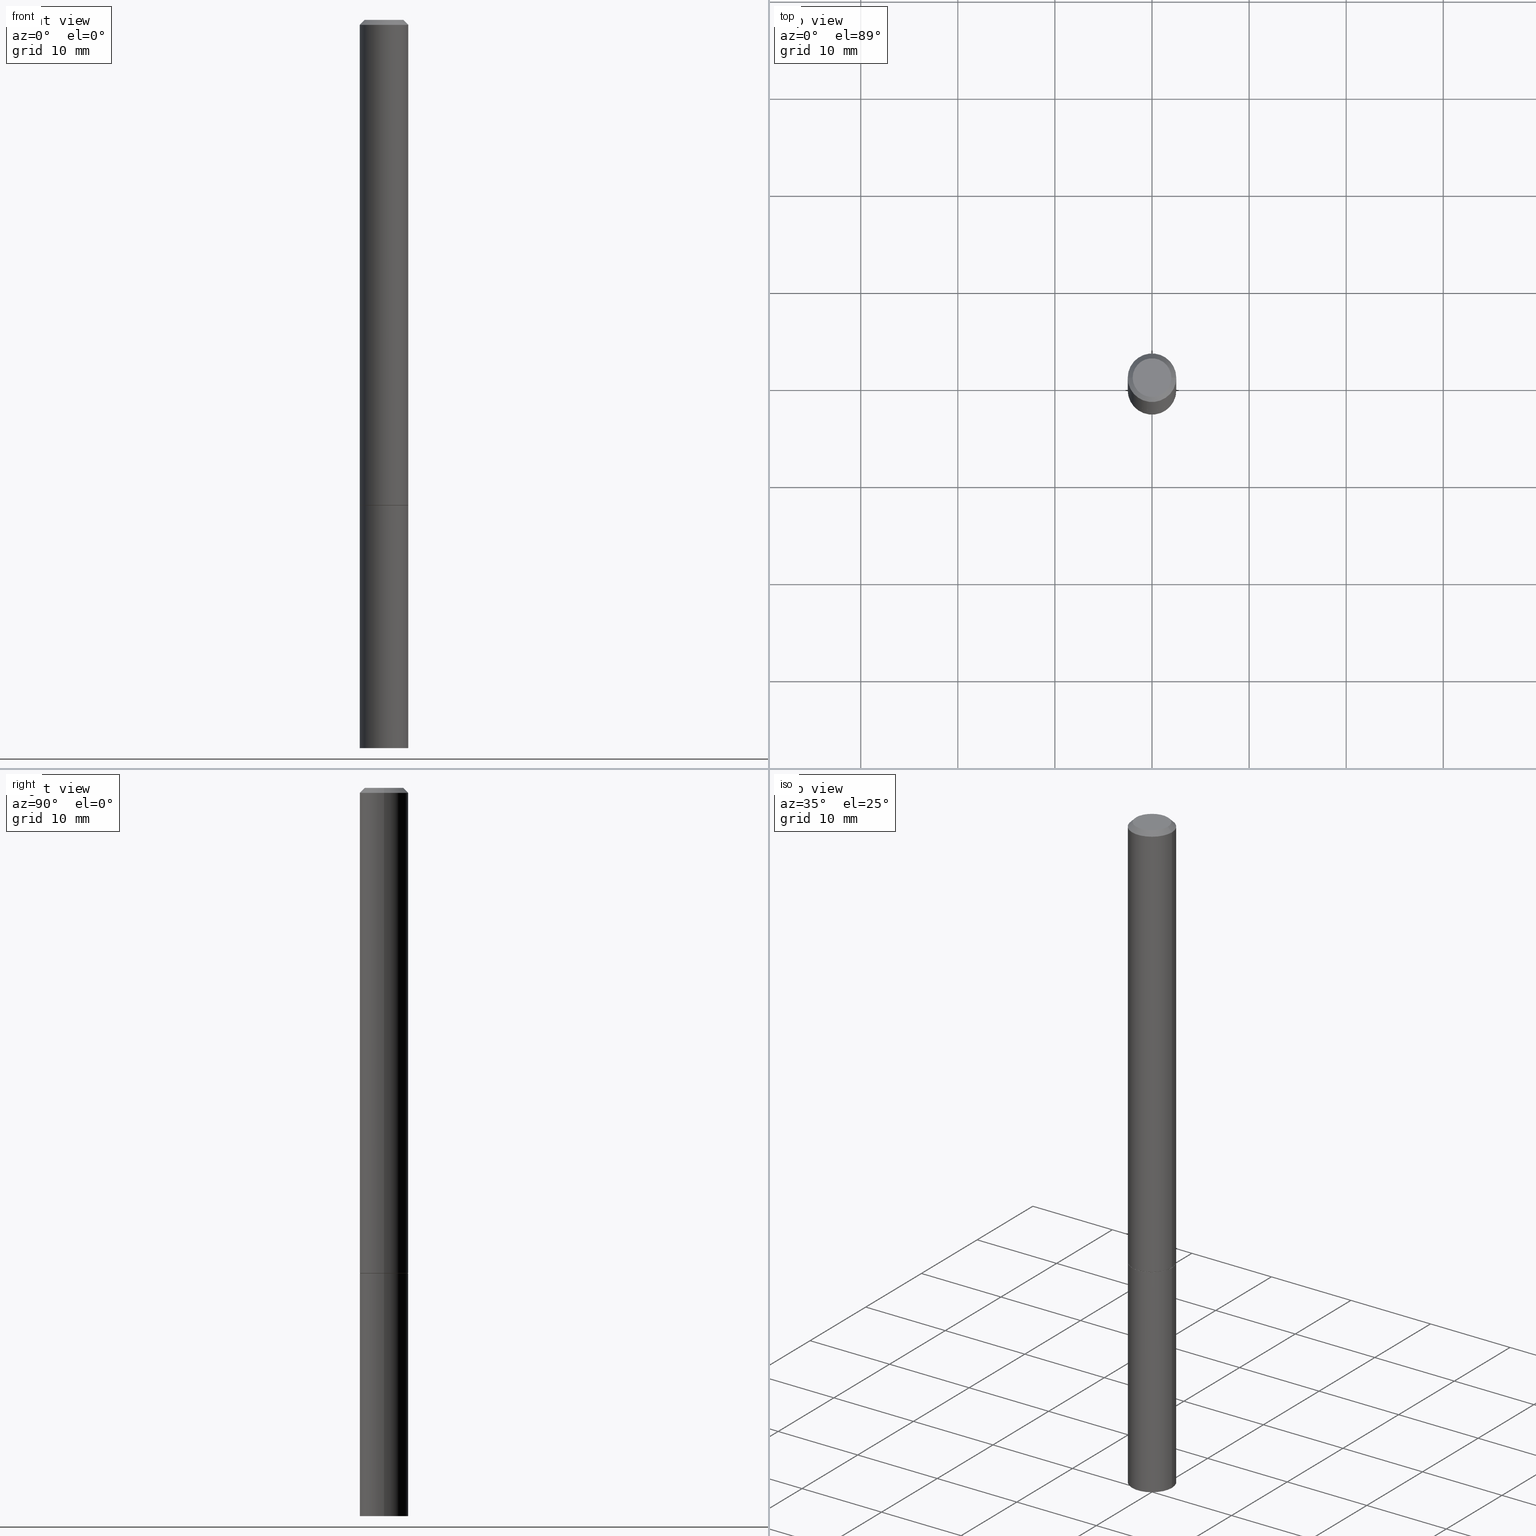
[diagram: canonical four-view strip — front | top / right | iso, engineering-drawing reading convention]
A machine part, canonical four-view strip (front | top / right | iso — engineering-drawing reading convention). The complete STEP part file that produces these views, byte-faithful:
ISO-10303-21;
HEADER;
FILE_DESCRIPTION (( 'STEP AP203' ),
    '1' );
FILE_NAME ('49495.STEP',
    '2024-02-29T00:12:34',
    ( '' ),
    ( '' ),
    'SwSTEP 2.0',
    'SolidWorks 2023',
    '' );
FILE_SCHEMA (( 'CONFIG_CONTROL_DESIGN' ));
ENDSEC;

DATA;
#1 = ORIENTED_EDGE ( 'NONE', *, *, #266, .T. ) ;
#2 = ADVANCED_FACE ( 'NONE', ( #64 ), #167, .F. ) ;
#3 = FACE_OUTER_BOUND ( 'NONE', #12, .T. ) ;
#4 = AXIS2_PLACEMENT_3D ( 'NONE', #52, #55, #337 ) ;
#5 = VERTEX_POINT ( 'NONE', #270 ) ;
#6 = ORIENTED_EDGE ( 'NONE', *, *, #7, .T. ) ;
#7 = EDGE_CURVE ( 'NONE', #36, #288, #94, .T. ) ;
#8 = ORIENTED_EDGE ( 'NONE', *, *, #282, .F. ) ;
#9 = DATE_AND_TIME ( #137, #311 ) ;
#10 = VECTOR ( 'NONE', #217, 39.37007874015748143 ) ;
#11 = DATE_TIME_ROLE ( 'creation_date' ) ;
#12 = EDGE_LOOP ( 'NONE', ( #157, #45, #240, #177 ) ) ;
#13 = EDGE_CURVE ( 'NONE', #258, #58, #190, .T. ) ;
#14 = DIRECTION ( 'NONE',  ( 1.000000000000000000, -6.982962677686274599E-15, 0.000000000000000000 ) ) ;
#15 = LINE ( 'NONE', #75, #28 ) ;
#16 = VERTEX_POINT ( 'NONE', #244 ) ;
#17 = PERSON_AND_ORGANIZATION ( #60, #224 ) ;
#18 = AXIS2_PLACEMENT_3D ( 'NONE', #61, #153, #204 ) ;
#19 = FACE_OUTER_BOUND ( 'NONE', #313, .T. ) ;
#20 = PERSON_AND_ORGANIZATION ( #60, #224 ) ;
#21 = DIRECTION ( 'NONE',  ( 1.000000000000000000, -6.982962677686266711E-15, 4.876176775795936353E-29 ) ) ;
#22 = VECTOR ( 'NONE', #98, 39.37007874015748143 ) ;
#23 = LOCAL_TIME ( 19, 12, 34.00000000000000000, #323 ) ;
#24 = CARTESIAN_POINT ( 'NONE',  ( 0.07844999999999976992, -6.417258612913216511E-16, -4.268512490096252041E-18 ) ) ;
#25 = DIRECTION ( 'NONE',  ( 2.445468806185136597E-29, -3.491481338843145583E-15, -1.000000000000000000 ) ) ;
#26 = FACE_OUTER_BOUND ( 'NONE', #155, .T. ) ;
#27 = CLOSED_SHELL ( 'NONE', ( #70, #100, #226, #292 ) ) ;
#28 = VECTOR ( 'NONE', #74, 39.37007874015748143 ) ;
#29 = DIRECTION ( 'NONE',  ( -2.445468806185136597E-29, 3.491481338843145583E-15, 1.000000000000000000 ) ) ;
#30 = DIRECTION ( 'NONE',  ( -2.445468806185136597E-29, 3.491481338843145583E-15, 1.000000000000000000 ) ) ;
#31 = EDGE_CURVE ( 'NONE', #151, #265, #133, .T. ) ;
#32 = DIMENSIONAL_EXPONENTS ( 1.000000000000000000, 0.000000000000000000, 0.000000000000000000, 0.000000000000000000, 0.000000000000000000, 0.000000000000000000, 0.000000000000000000 ) ;
#33 = ORIENTED_EDGE ( 'NONE', *, *, #352, .F. ) ;
#34 = EDGE_CURVE ( 'NONE', #151, #5, #50, .T. ) ;
#35 = DIRECTION ( 'NONE',  ( -2.445468806185136597E-29, 3.491481338843145583E-15, 1.000000000000000000 ) ) ;
#36 = VERTEX_POINT ( 'NONE', #247 ) ;
#37 = DIRECTION ( 'NONE',  ( -0.7071067811865466846, 2.468850131082247989E-15, -0.7071067811865483499 ) ) ;
#38 = DATE_AND_TIME ( #66, #108 ) ;
#39 = DIRECTION ( 'NONE',  ( -1.000000000000000000, 6.982962677686265922E-15, -4.876176775795935793E-29 ) ) ;
#40 = DIRECTION ( 'NONE',  ( -2.445468806185136877E-29, 3.491481338843145188E-15, 1.000000000000000000 ) ) ;
#41 = CIRCLE ( 'NONE', #362, 0.09844999999999999585 ) ;
#42 = EDGE_CURVE ( 'NONE', #290, #118, #103, .T. ) ;
#43 = APPROVAL_ROLE ( '' ) ;
#44 = PERSON_AND_ORGANIZATION_ROLE ( 'design_owner' ) ;
#45 = ORIENTED_EDGE ( 'NONE', *, *, #339, .T. ) ;
#46 = CALENDAR_DATE ( 2024, 28, 2 ) ;
#47 = CONICAL_SURFACE ( 'NONE', #257, 0.09844999999999973217, 0.7853981633974471688 ) ;
#48 = EDGE_CURVE ( 'NONE', #5, #151, #237, .T. ) ;
#49 = COORDINATED_UNIVERSAL_TIME_OFFSET ( 5, 0, .BEHIND. ) ;
#50 = CIRCLE ( 'NONE', #263, 0.09844999999999999585 ) ;
#51 = CC_DESIGN_PERSON_AND_ORGANIZATION_ASSIGNMENT ( #246, #148, ( #356 ) ) ;
#52 = CARTESIAN_POINT ( 'NONE',  ( 4.813905344975440714E-29, -6.872981015512730918E-15, -1.968499999999999694 ) ) ;
#53 = DIRECTION ( 'NONE',  ( 1.000000000000000000, -6.982962677686266711E-15, 4.876176775795936353E-29 ) ) ;
#54 = ORIENTED_EDGE ( 'NONE', *, *, #334, .F. ) ;
#55 = DIRECTION ( 'NONE',  ( -2.445468806185136597E-29, 3.491481338843145583E-15, 1.000000000000000000 ) ) ;
#56 = APPROVAL_PERSON_ORGANIZATION ( #17, #84, #271 ) ;
#57 = DIRECTION ( 'NONE',  ( 1.000000000000000000, -6.982962677686266711E-15, 4.876176775795936353E-29 ) ) ;
#58 = VERTEX_POINT ( 'NONE', #92 ) ;
#59 = FACE_OUTER_BOUND ( 'NONE', #65, .T. ) ;
#60 = PERSON ( 'UNSPECIFIED', 'UNSPECIFIED', 'UNSPECIFIED', ('UNSPECIFIED'), ('UNSPECIFIED'), ('UNSPECIFIED') ) ;
#61 = CARTESIAN_POINT ( 'NONE',  ( 7.220980290903470182E-29, -1.030964609733603853E-14, -2.952799999999999869 ) ) ;
#62 = ORIENTED_EDGE ( 'NONE', *, *, #109, .T. ) ;
#63 = SECURITY_CLASSIFICATION ( '', '', #306 ) ;
#64 = FACE_OUTER_BOUND ( 'NONE', #319, .T. ) ;
#65 = EDGE_LOOP ( 'NONE', ( #301, #62, #267, #33 ) ) ;
#66 = CALENDAR_DATE ( 2024, 28, 2 ) ;
#67 = CYLINDRICAL_SURFACE ( 'NONE', #183, 0.09844999999999987095 ) ;
#68 = APPROVAL_DATE_TIME ( #318, #192 ) ;
#69 = AXIS2_PLACEMENT_3D ( 'NONE', #176, #152, #284 ) ;
#70 = ADVANCED_FACE ( 'NONE', ( #232 ), #333, .T. ) ;
#71 = CARTESIAN_POINT ( 'NONE',  ( 0.09744999999999999496, -7.553470728453258253E-15, -1.968500000000000139 ) ) ;
#72 = ORIENTED_EDGE ( 'NONE', *, *, #282, .T. ) ;
#73 = CARTESIAN_POINT ( 'NONE',  ( 4.813905344975441835E-29, -6.872981015512731707E-15, -1.968500000000000139 ) ) ;
#74 = DIRECTION ( 'NONE',  ( -2.445468806185136877E-29, 3.491481338843145188E-15, 1.000000000000000000 ) ) ;
#75 = CARTESIAN_POINT ( 'NONE',  ( -0.09844999999999987095, 6.995293233558177160E-16, -4.842691596355948437E-30 ) ) ;
#76 = ORIENTED_EDGE ( 'NONE', *, *, #48, .F. ) ;
#77 = ADVANCED_FACE ( 'NONE', ( #3 ), #289, .T. ) ;
#78 = CARTESIAN_POINT ( 'NONE',  ( 0.000000000000000000, 0.000000000000000000, 0.000000000000000000 ) ) ;
#79 = CC_DESIGN_PERSON_AND_ORGANIZATION_ASSIGNMENT ( #250, #354, ( #156 ) ) ;
#80 = APPROVAL_ROLE ( '' ) ;
#81 = CC_DESIGN_APPROVAL ( #175, ( #63 ) ) ;
#82 = CARTESIAN_POINT ( 'NONE',  ( 4.813905344975440714E-29, -6.872981015512730918E-15, -1.968499999999999694 ) ) ;
#83 = EDGE_LOOP ( 'NONE', ( #260, #196, #278, #238 ) ) ;
#84 = APPROVAL ( #162, 'UNSPECIFIED' ) ;
#85 = DIRECTION ( 'NONE',  ( -2.445468806185136597E-29, 3.491481338843145583E-15, 1.000000000000000000 ) ) ;
#86 = ORIENTED_EDGE ( 'NONE', *, *, #42, .F. ) ;
#87 = MANIFOLD_SOLID_BREP ( 'Body-Move/Copy2[2]', #197 ) ;
#88 = CIRCLE ( 'NONE', #69, 0.09844999999999973217 ) ;
#89 = DIRECTION ( 'NONE',  ( -2.445468806185136597E-29, 3.491481338843145583E-15, 1.000000000000000000 ) ) ;
#90 = ORIENTED_EDGE ( 'NONE', *, *, #234, .F. ) ;
#91 = DIRECTION ( 'NONE',  ( 2.438088387897960049E-29, -3.491481338843145188E-15, -1.000000000000000000 ) ) ;
#92 = CARTESIAN_POINT ( 'NONE',  ( 0.09844999999999973217, -7.452456546574684343E-16, -0.02000000000000002470 ) ) ;
#93 = EDGE_LOOP ( 'NONE', ( #241, #54, #6, #180 ) ) ;
#94 = LINE ( 'NONE', #276, #297 ) ;
#95 = CC_DESIGN_APPROVAL ( #192, ( #356 ) ) ;
#96 = AXIS2_PLACEMENT_3D ( 'NONE', #344, #91, #361 ) ;
#97 = CARTESIAN_POINT ( 'NONE',  ( 5.478134220644859637E-16, 0.07844999999999976992, -2.760409672772941320E-16 ) ) ;
#98 = DIRECTION ( 'NONE',  ( -2.445468806185136877E-29, 3.491481338843145188E-15, 1.000000000000000000 ) ) ;
#99 = LINE ( 'NONE', #71, #10 ) ;
#100 = ADVANCED_FACE ( 'NONE', ( #366 ), #286, .T. ) ;
#101 =( NAMED_UNIT ( * ) PLANE_ANGLE_UNIT ( ) SI_UNIT ( $, .RADIAN. ) );
#102 = DIRECTION ( 'NONE',  ( -1.000000000000000000, 6.982962677686266711E-15, 0.000000000000000000 ) ) ;
#103 = CIRCLE ( 'NONE', #144, 0.09744999999999999496 ) ;
#104 = AXIS2_PLACEMENT_3D ( 'NONE', #210, #25, #149 ) ;
#105 =( NAMED_UNIT ( * ) SI_UNIT ( $, .STERADIAN. ) SOLID_ANGLE_UNIT ( ) );
#106 = CC_DESIGN_PERSON_AND_ORGANIZATION_ASSIGNMENT ( #20, #357, ( #63 ) ) ;
#107 = DATE_AND_TIME ( #325, #314 ) ;
#108 = LOCAL_TIME ( 19, 12, 34.00000000000000000, #168 ) ;
#109 = EDGE_CURVE ( 'NONE', #290, #16, #119, .T. ) ;
#110 = DIRECTION ( 'NONE',  ( 1.000000000000000000, -6.982962677686266711E-15, 0.000000000000000000 ) ) ;
#111 = PERSON_AND_ORGANIZATION ( #60, #224 ) ;
#112 = APPROVAL_STATUS ( 'not_yet_approved' ) ;
#113 = FACE_OUTER_BOUND ( 'NONE', #93, .T. ) ;
#114 = CIRCLE ( 'NONE', #315, 0.09744999999999999496 ) ;
#115 = CARTESIAN_POINT ( 'NONE',  ( 1.043851414335219820E-46, -1.490343170380447200E-32, -4.268512490100411279E-18 ) ) ;
#116 = EDGE_CURVE ( 'NONE', #128, #16, #41, .T. ) ;
#117 = DIRECTION ( 'NONE',  ( 1.000000000000000000, -6.982962677686264344E-15, 0.000000000000000000 ) ) ;
#118 = VERTEX_POINT ( 'NONE', #229 ) ;
#119 = LINE ( 'NONE', #336, #272 ) ;
#120 = VECTOR ( 'NONE', #130, 39.37007874015748143 ) ;
#121 = CONICAL_SURFACE ( 'NONE', #104, 0.09844999999999973217, 0.7853981633974471688 ) ;
#122 = PLANE ( 'NONE',  #96 ) ;
#123 = ADVANCED_FACE ( 'NONE', ( #113 ), #121, .T. ) ;
#124 = DIRECTION ( 'NONE',  ( 2.438088387897960049E-29, -3.491481338843145188E-15, -1.000000000000000000 ) ) ;
#125 = EDGE_LOOP ( 'NONE', ( #294, #72, #308, #212 ) ) ;
#126 = DIRECTION ( 'NONE',  ( 1.000000000000000000, -6.982962677686264344E-15, 0.000000000000000000 ) ) ;
#127 = DIRECTION ( 'NONE',  ( 0.000000000000000000, 0.000000000000000000, 1.000000000000000000 ) ) ;
#128 = VERTEX_POINT ( 'NONE', #256 ) ;
#129 = CARTESIAN_POINT ( 'NONE',  ( 4.890937612370279289E-31, -6.982962677686299005E-17, -0.02000000000000002470 ) ) ;
#130 = DIRECTION ( 'NONE',  ( 0.7071067811865466846, -7.319954787623252890E-15, -0.7071067811865483499 ) ) ;
#131 = DIRECTION ( 'NONE',  ( 1.000000000000000000, -6.982962677686265922E-15, 4.876126812019107680E-29 ) ) ;
#132 = CC_DESIGN_DATE_AND_TIME_ASSIGNMENT ( #107, #329, ( #63 ) ) ;
#133 = LINE ( 'NONE', #299, #22 ) ;
#134 = PERSON_AND_ORGANIZATION_ROLE ( 'creator' ) ;
#135 = ORIENTED_EDGE ( 'NONE', *, *, #266, .F. ) ;
#136 = DIRECTION ( 'NONE',  ( 1.000000000000000000, -6.982962677686264344E-15, 0.000000000000000000 ) ) ;
#137 = CALENDAR_DATE ( 2024, 28, 2 ) ;
#138 = ORIENTED_EDGE ( 'NONE', *, *, #109, .F. ) ;
#139 = EDGE_CURVE ( 'NONE', #265, #316, #321, .T. ) ;
#140 = ORIENTED_EDGE ( 'NONE', *, *, #352, .T. ) ;
#141 = CARTESIAN_POINT ( 'NONE',  ( -0.09744999999999999496, -6.175258665166291414E-15, -1.968500000000000139 ) ) ;
#142 = DIRECTION ( 'NONE',  ( -2.445468806185136597E-29, 3.491481338843145583E-15, 1.000000000000000000 ) ) ;
#143 = CONICAL_SURFACE ( 'NONE', #158, 0.09744999999999999496, 0.7853981633972775267 ) ;
#144 = AXIS2_PLACEMENT_3D ( 'NONE', #73, #293, #126 ) ;
#145 = ADVANCED_FACE ( 'NONE', ( #185 ), #47, .T. ) ;
#146 = CARTESIAN_POINT ( 'NONE',  ( 4.813905344975441835E-29, -6.872981015512731707E-15, -1.968500000000000139 ) ) ;
#147 = CALENDAR_DATE ( 2024, 28, 2 ) ;
#148 = PERSON_AND_ORGANIZATION_ROLE ( 'design_supplier' ) ;
#149 = DIRECTION ( 'NONE',  ( -1.000000000000000000, 6.982962677686266711E-15, 0.000000000000000000 ) ) ;
#150 = ADVANCED_FACE ( 'NONE', ( #193 ), #264, .T. ) ;
#151 = VERTEX_POINT ( 'NONE', #215 ) ;
#152 = DIRECTION ( 'NONE',  ( -2.445468806185136597E-29, 3.491481338843145583E-15, 1.000000000000000000 ) ) ;
#153 = DIRECTION ( 'NONE',  ( -2.445468806185136597E-29, 3.491481338843145583E-15, 1.000000000000000000 ) ) ;
#154 = DESIGN_CONTEXT ( 'detailed design', #219, 'design' ) ;
#155 = EDGE_LOOP ( 'NONE', ( #8, #209, #230, #90 ) ) ;
#156 = PRODUCT_DEFINITION ( 'UNKNOWN', '', #356, #154 ) ;
#157 = ORIENTED_EDGE ( 'NONE', *, *, #116, .T. ) ;
#158 = AXIS2_PLACEMENT_3D ( 'NONE', #364, #29, #117 ) ;
#159 = CARTESIAN_POINT ( 'NONE',  ( -0.09844999999999973217, 6.176430488413481772E-16, -0.02000000000000002470 ) ) ;
#160 = ADVANCED_FACE ( 'NONE', ( #317 ), #67, .T. ) ;
#161 = CARTESIAN_POINT ( 'NONE',  ( 0.09844999999999973217, -7.452456546574684343E-16, -0.02000000000000002470 ) ) ;
#162 = APPROVAL_STATUS ( 'not_yet_approved' ) ;
#163 = AXIS2_PLACEMENT_3D ( 'NONE', #222, #127, #165 ) ;
#164 = DIRECTION ( 'NONE',  ( -2.445468806185136597E-29, 3.491481338843145583E-15, 1.000000000000000000 ) ) ;
#165 = DIRECTION ( 'NONE',  ( 1.000000000000000000, 0.000000000000000000, 0.000000000000000000 ) ) ;
#166 = EDGE_LOOP ( 'NONE', ( #349, #76 ) ) ;
#167 = PLANE ( 'NONE',  #205 ) ;
#168 = COORDINATED_UNIVERSAL_TIME_OFFSET ( 5, 0, .BEHIND. ) ;
#169 = DIRECTION ( 'NONE',  ( -2.445468806185136877E-29, 3.491481338843145188E-15, 1.000000000000000000 ) ) ;
#170 = LOCAL_TIME ( 19, 12, 34.00000000000000000, #49 ) ;
#171 = VECTOR ( 'NONE', #40, 39.37007874015748143 ) ;
#172 = PLANE ( 'NONE',  #280 ) ;
#173 = CIRCLE ( 'NONE', #4, 0.09844999999999999585 ) ;
#174 = CC_DESIGN_SECURITY_CLASSIFICATION ( #63, ( #356 ) ) ;
#175 = APPROVAL ( #112, 'UNSPECIFIED' ) ;
#176 = CARTESIAN_POINT ( 'NONE',  ( 4.890937612370279289E-31, -6.982962677686299005E-17, -0.02000000000000002470 ) ) ;
#177 = ORIENTED_EDGE ( 'NONE', *, *, #328, .F. ) ;
#178 = AXIS2_PLACEMENT_3D ( 'NONE', #360, #30, #340 ) ;
#179 = SHAPE_DEFINITION_REPRESENTATION ( #194, #296 ) ;
#180 = ORIENTED_EDGE ( 'NONE', *, *, #208, .T. ) ;
#181 = CARTESIAN_POINT ( 'NONE',  ( 4.811459876169255671E-29, -6.869489534173887122E-15, -1.967499999999999805 ) ) ;
#182 = EDGE_LOOP ( 'NONE', ( #135, #338, #187, #233 ) ) ;
#183 = AXIS2_PLACEMENT_3D ( 'NONE', #78, #353, #21 ) ;
#184 = ORIENTED_EDGE ( 'NONE', *, *, #139, .T. ) ;
#185 = FACE_OUTER_BOUND ( 'NONE', #182, .T. ) ;
#186 = APPROVAL_STATUS ( 'not_yet_approved' ) ;
#187 = ORIENTED_EDGE ( 'NONE', *, *, #218, .T. ) ;
#188 = PRODUCT ( '49495', '49495', '', ( #221 ) ) ;
#189 = APPROVAL_PERSON_ORGANIZATION ( #268, #192, #43 ) ;
#190 = LINE ( 'NONE', #161, #120 ) ;
#191 = PERSON_AND_ORGANIZATION ( #60, #224 ) ;
#192 = APPROVAL ( #186, 'UNSPECIFIED' ) ;
#193 = FACE_OUTER_BOUND ( 'NONE', #320, .T. ) ;
#194 = PRODUCT_DEFINITION_SHAPE ( 'NONE', 'NONE',  #156 ) ;
#195 = APPLICATION_PROTOCOL_DEFINITION ( 'international standard', 'config_control_design', 1994, #345 ) ;
#196 = ORIENTED_EDGE ( 'NONE', *, *, #274, .T. ) ;
#197 = CLOSED_SHELL ( 'NONE', ( #223, #77, #145, #123, #160, #150, #200, #2 ) ) ;
#198 = AXIS2_PLACEMENT_3D ( 'NONE', #351, #279, #131 ) ;
#199 = DIRECTION ( 'NONE',  ( -2.438088387897960049E-29, 3.491481338843145188E-15, 1.000000000000000000 ) ) ;
#200 = ADVANCED_FACE ( 'NONE', ( #19 ), #172, .F. ) ;
#201 = CIRCLE ( 'NONE', #198, 0.07844999999999976992 ) ;
#202 = LINE ( 'NONE', #305, #220 ) ;
#203 = CARTESIAN_POINT ( 'NONE',  ( 6.874726756182850367E-16, 0.09844999999998968465, -2.952800000000000313 ) ) ;
#204 = DIRECTION ( 'NONE',  ( 1.000000000000000000, -6.982962677686274599E-15, 0.000000000000000000 ) ) ;
#205 = AXIS2_PLACEMENT_3D ( 'NONE', #97, #211, #39 ) ;
#206 = AXIS2_PLACEMENT_3D ( 'NONE', #203, #124, #239 ) ;
#207 = DIRECTION ( 'NONE',  ( -0.7071067811864267805, 7.493145998869918709E-15, 0.7071067811866682540 ) ) ;
#208 = EDGE_CURVE ( 'NONE', #288, #58, #242, .T. ) ;
#209 = ORIENTED_EDGE ( 'NONE', *, *, #48, .T. ) ;
#210 = CARTESIAN_POINT ( 'NONE',  ( 4.890937612370279289E-31, -6.982962677686299005E-17, -0.02000000000000002470 ) ) ;
#211 = DIRECTION ( 'NONE',  ( 2.438088387897960049E-29, -3.491481338843145188E-15, -1.000000000000000000 ) ) ;
#212 = ORIENTED_EDGE ( 'NONE', *, *, #31, .F. ) ;
#213 = CC_DESIGN_PERSON_AND_ORGANIZATION_ASSIGNMENT ( #273, #134, ( #356 ) ) ;
#214 = DIRECTION ( 'NONE',  ( 1.000000000000000000, -6.982962677686265922E-15, 0.000000000000000000 ) ) ;
#215 = CARTESIAN_POINT ( 'NONE',  ( 0.09844999999999999585, -1.099711877295425267E-14, -2.952799999999999869 ) ) ;
#216 = CARTESIAN_POINT ( 'NONE',  ( 7.220980290903470182E-29, -1.030964609733603853E-14, -2.952799999999999869 ) ) ;
#217 = DIRECTION ( 'NONE',  ( 0.7071067811864267805, -2.468850131080992517E-15, 0.7071067811866682540 ) ) ;
#218 = EDGE_CURVE ( 'NONE', #58, #288, #88, .T. ) ;
#219 = APPLICATION_CONTEXT ( 'configuration controlled 3d designs of mechanical parts and assemblies' ) ;
#220 = VECTOR ( 'NONE', #169, 39.37007874015748143 ) ;
#221 = MECHANICAL_CONTEXT ( 'NONE', #345, 'mechanical' ) ;
#222 = CARTESIAN_POINT ( 'NONE',  ( 0.000000000000000000, 0.000000000000000000, 0.000000000000000000 ) ) ;
#223 = ADVANCED_FACE ( 'NONE', ( #59 ), #143, .T. ) ;
#224 = ORGANIZATION ( 'UNSPECIFIED', 'UNSPECIFIED', '' ) ;
#225 = CARTESIAN_POINT ( 'NONE',  ( 0.09844999999999987095, -6.874726756182120670E-16, 4.800596035771092908E-30 ) ) ;
#226 = ADVANCED_FACE ( 'NONE', ( #231 ), #122, .F. ) ;
#227 = CARTESIAN_POINT ( 'NONE',  ( 0.000000000000000000, 0.000000000000000000, 0.000000000000000000 ) ) ;
#228 = AXIS2_PLACEMENT_3D ( 'NONE', #262, #310, #57 ) ;
#229 = CARTESIAN_POINT ( 'NONE',  ( 0.09744999999999999496, -7.553470728453258253E-15, -1.968500000000000139 ) ) ;
#230 = ORIENTED_EDGE ( 'NONE', *, *, #31, .T. ) ;
#231 = FACE_OUTER_BOUND ( 'NONE', #363, .T. ) ;
#232 = FACE_OUTER_BOUND ( 'NONE', #125, .T. ) ;
#233 = ORIENTED_EDGE ( 'NONE', *, *, #7, .F. ) ;
#234 = EDGE_CURVE ( 'NONE', #316, #265, #173, .T. ) ;
#235 = DIRECTION ( 'NONE',  ( 1.000000000000000000, -6.982962677686265922E-15, 4.876126812019107680E-29 ) ) ;
#236 = CARTESIAN_POINT ( 'NONE',  ( 4.811459876169255671E-29, -6.869489534173887122E-15, -1.967499999999999805 ) ) ;
#237 = CIRCLE ( 'NONE', #18, 0.09844999999999999585 ) ;
#238 = ORIENTED_EDGE ( 'NONE', *, *, #208, .F. ) ;
#239 = DIRECTION ( 'NONE',  ( -1.000000000000000000, 6.982962677686265922E-15, -4.876176775795935793E-29 ) ) ;
#240 = ORIENTED_EDGE ( 'NONE', *, *, #218, .F. ) ;
#241 = ORIENTED_EDGE ( 'NONE', *, *, #13, .F. ) ;
#242 = CIRCLE ( 'NONE', #342, 0.09844999999999973217 ) ;
#243 = CARTESIAN_POINT ( 'NONE',  ( 4.813905344975441835E-29, -6.872981015512731707E-15, -1.968500000000000139 ) ) ;
#244 = CARTESIAN_POINT ( 'NONE',  ( -0.09844999999999998197, -2.770130257119553156E-15, -1.967499999999999805 ) ) ;
#245 = COORDINATED_UNIVERSAL_TIME_OFFSET ( 5, 0, .BEHIND. ) ;
#246 = PERSON_AND_ORGANIZATION ( #60, #224 ) ;
#247 = CARTESIAN_POINT ( 'NONE',  ( -0.07844999999999976992, 5.827282354529171197E-16, -4.268512490104364828E-18 ) ) ;
#248 =( LENGTH_UNIT ( ) NAMED_UNIT ( * ) SI_UNIT ( $, .METRE. ) );
#249 = CC_DESIGN_APPROVAL ( #84, ( #156 ) ) ;
#250 = PERSON_AND_ORGANIZATION ( #60, #224 ) ;
#251 = COORDINATED_UNIVERSAL_TIME_OFFSET ( 5, 0, .BEHIND. ) ;
#252 = APPROVAL_DATE_TIME ( #285, #175 ) ;
#253 = CIRCLE ( 'NONE', #302, 0.07844999999999976992 ) ;
#254 = CC_DESIGN_PERSON_AND_ORGANIZATION_ASSIGNMENT ( #191, #44, ( #188 ) ) ;
#255 = CARTESIAN_POINT ( 'NONE',  ( 4.813905344975441835E-29, -6.872981015512731707E-15, -1.968500000000000139 ) ) ;
#256 = CARTESIAN_POINT ( 'NONE',  ( 0.09844999999999999585, -7.556962209792099682E-15, -1.967499999999999805 ) ) ;
#257 = AXIS2_PLACEMENT_3D ( 'NONE', #129, #275, #102 ) ;
#258 = VERTEX_POINT ( 'NONE', #24 ) ;
#259 = EDGE_CURVE ( 'NONE', #118, #290, #114, .T. ) ;
#260 = ORIENTED_EDGE ( 'NONE', *, *, #339, .F. ) ;
#261 = UNCERTAINTY_MEASURE_WITH_UNIT (LENGTH_MEASURE( 1.000000000000000082E-05 ), #347, 'distance_accuracy_value', 'NONE');
#262 = CARTESIAN_POINT ( 'NONE',  ( 0.000000000000000000, 0.000000000000000000, 0.000000000000000000 ) ) ;
#263 = AXIS2_PLACEMENT_3D ( 'NONE', #216, #35, #14 ) ;
#264 = CONICAL_SURFACE ( 'NONE', #304, 0.09744999999999999496, 0.7853981633972775267 ) ;
#265 = VERTEX_POINT ( 'NONE', #309 ) ;
#266 = EDGE_CURVE ( 'NONE', #258, #36, #253, .T. ) ;
#267 = ORIENTED_EDGE ( 'NONE', *, *, #116, .F. ) ;
#268 = PERSON_AND_ORGANIZATION ( #60, #224 ) ;
#269 = ORIENTED_EDGE ( 'NONE', *, *, #42, .T. ) ;
#270 = CARTESIAN_POINT ( 'NONE',  ( -0.09844999999999999585, -7.891784233068567007E-15, -2.952799999999999869 ) ) ;
#271 = APPROVAL_ROLE ( '' ) ;
#272 = VECTOR ( 'NONE', #207, 39.37007874015748143 ) ;
#273 = PERSON_AND_ORGANIZATION ( #60, #224 ) ;
#274 = EDGE_CURVE ( 'NONE', #16, #128, #348, .T. ) ;
#275 = DIRECTION ( 'NONE',  ( 2.445468806185136597E-29, -3.491481338843145583E-15, -1.000000000000000000 ) ) ;
#276 = CARTESIAN_POINT ( 'NONE',  ( -0.09844999999999973217, 6.176430488413481772E-16, -0.02000000000000002470 ) ) ;
#277 = APPROVAL_DATE_TIME ( #38, #84 ) ;
#278 = ORIENTED_EDGE ( 'NONE', *, *, #328, .T. ) ;
#279 = DIRECTION ( 'NONE',  ( -2.445468806185136597E-29, 3.491481338843145583E-15, 1.000000000000000000 ) ) ;
#280 = AXIS2_PLACEMENT_3D ( 'NONE', #146, #199, #330 ) ;
#281 = PRODUCT_RELATED_PRODUCT_CATEGORY ( 'detail', '', ( #188 ) ) ;
#282 = EDGE_CURVE ( 'NONE', #5, #316, #202, .T. ) ;
#283 = CYLINDRICAL_SURFACE ( 'NONE', #287, 0.09844999999999999585 ) ;
#284 = DIRECTION ( 'NONE',  ( 1.000000000000000000, -6.982962677686266711E-15, 0.000000000000000000 ) ) ;
#285 = DATE_AND_TIME ( #147, #170 ) ;
#286 = PLANE ( 'NONE',  #206 ) ;
#287 = AXIS2_PLACEMENT_3D ( 'NONE', #227, #307, #53 ) ;
#288 = VERTEX_POINT ( 'NONE', #159 ) ;
#289 = CYLINDRICAL_SURFACE ( 'NONE', #178, 0.09844999999999987095 ) ;
#290 = VERTEX_POINT ( 'NONE', #141 ) ;
#291 = DIRECTION ( 'NONE',  ( -2.445468806185136597E-29, 3.491481338843145583E-15, 1.000000000000000000 ) ) ;
#292 = ADVANCED_FACE ( 'NONE', ( #26 ), #283, .T. ) ;
#293 = DIRECTION ( 'NONE',  ( -2.445468806185136597E-29, 3.491481338843145583E-15, 1.000000000000000000 ) ) ;
#294 = ORIENTED_EDGE ( 'NONE', *, *, #34, .T. ) ;
#295 = ORIENTED_EDGE ( 'NONE', *, *, #334, .T. ) ;
#296 = ADVANCED_BREP_SHAPE_REPRESENTATION ( '49495', ( #327, #87, #163 ), #341 ) ;
#297 = VECTOR ( 'NONE', #37, 39.37007874015748143 ) ;
#298 = AXIS2_PLACEMENT_3D ( 'NONE', #181, #291, #331 ) ;
#299 = CARTESIAN_POINT ( 'NONE',  ( 0.09844999999999999585, -6.874726756182129545E-16, 4.800596035771099214E-30 ) ) ;
#300 = APPLICATION_PROTOCOL_DEFINITION ( 'international standard', 'config_control_design', 1994, #219 ) ;
#301 = ORIENTED_EDGE ( 'NONE', *, *, #259, .T. ) ;
#302 = AXIS2_PLACEMENT_3D ( 'NONE', #115, #335, #235 ) ;
#303 = APPROVAL_PERSON_ORGANIZATION ( #111, #175, #80 ) ;
#304 = AXIS2_PLACEMENT_3D ( 'NONE', #243, #350, #136 ) ;
#305 = CARTESIAN_POINT ( 'NONE',  ( -0.09844999999999999585, 6.995293233558186035E-16, -4.842691596355954042E-30 ) ) ;
#306 = SECURITY_CLASSIFICATION_LEVEL ( 'unclassified' ) ;
#307 = DIRECTION ( 'NONE',  ( -2.445468806185136597E-29, 3.491481338843145583E-15, 1.000000000000000000 ) ) ;
#308 = ORIENTED_EDGE ( 'NONE', *, *, #139, .F. ) ;
#309 = CARTESIAN_POINT ( 'NONE',  ( 0.09844999999999999585, -7.560453691130944267E-15, -1.968499999999999694 ) ) ;
#310 = DIRECTION ( 'NONE',  ( -2.445468806185136597E-29, 3.491481338843145583E-15, 1.000000000000000000 ) ) ;
#311 = LOCAL_TIME ( 19, 12, 34.00000000000000000, #245 ) ;
#312 = CC_DESIGN_DATE_AND_TIME_ASSIGNMENT ( #9, #11, ( #156 ) ) ;
#313 = EDGE_LOOP ( 'NONE', ( #343, #86 ) ) ;
#314 = LOCAL_TIME ( 19, 12, 34.00000000000000000, #251 ) ;
#315 = AXIS2_PLACEMENT_3D ( 'NONE', #255, #85, #359 ) ;
#316 = VERTEX_POINT ( 'NONE', #326 ) ;
#317 = FACE_OUTER_BOUND ( 'NONE', #83, .T. ) ;
#318 = DATE_AND_TIME ( #46, #23 ) ;
#319 = EDGE_LOOP ( 'NONE', ( #295, #1 ) ) ;
#320 = EDGE_LOOP ( 'NONE', ( #138, #269, #140, #358 ) ) ;
#321 = CIRCLE ( 'NONE', #332, 0.09844999999999999585 ) ;
#322 = LENGTH_MEASURE_WITH_UNIT ( LENGTH_MEASURE( 0.02539999999999999897 ), #248 );
#323 = COORDINATED_UNIVERSAL_TIME_OFFSET ( 5, 0, .BEHIND. ) ;
#324 = CARTESIAN_POINT ( 'NONE',  ( 4.890937612370279289E-31, -6.982962677686299005E-17, -0.02000000000000002470 ) ) ;
#325 = CALENDAR_DATE ( 2024, 28, 2 ) ;
#326 = CARTESIAN_POINT ( 'NONE',  ( -0.09844999999999999585, -7.891784233068567007E-15, -1.968499999999999694 ) ) ;
#327 = MANIFOLD_SOLID_BREP ( 'Body-Move/Copy2[1]', #27 ) ;
#328 = EDGE_CURVE ( 'NONE', #128, #58, #355, .T. ) ;
#329 = DATE_TIME_ROLE ( 'classification_date' ) ;
#330 = DIRECTION ( 'NONE',  ( 1.000000000000000000, -6.982962677686265922E-15, 4.876176775795935793E-29 ) ) ;
#331 = DIRECTION ( 'NONE',  ( 1.000000000000000000, -6.982962677686265922E-15, 0.000000000000000000 ) ) ;
#332 = AXIS2_PLACEMENT_3D ( 'NONE', #82, #164, #214 ) ;
#333 = CYLINDRICAL_SURFACE ( 'NONE', #228, 0.09844999999999999585 ) ;
#334 = EDGE_CURVE ( 'NONE', #36, #258, #201, .T. ) ;
#335 = DIRECTION ( 'NONE',  ( -2.445468806185136597E-29, 3.491481338843145583E-15, 1.000000000000000000 ) ) ;
#336 = CARTESIAN_POINT ( 'NONE',  ( -0.09744999999999999496, -6.180557119514514605E-15, -1.968500000000000139 ) ) ;
#337 = DIRECTION ( 'NONE',  ( 1.000000000000000000, -6.982962677686265922E-15, 0.000000000000000000 ) ) ;
#338 = ORIENTED_EDGE ( 'NONE', *, *, #13, .T. ) ;
#339 = EDGE_CURVE ( 'NONE', #16, #288, #15, .T. ) ;
#340 = DIRECTION ( 'NONE',  ( 1.000000000000000000, -6.982962677686266711E-15, 4.876176775795936353E-29 ) ) ;
#341 =( GEOMETRIC_REPRESENTATION_CONTEXT ( 3 ) GLOBAL_UNCERTAINTY_ASSIGNED_CONTEXT ( ( #261 ) ) GLOBAL_UNIT_ASSIGNED_CONTEXT ( ( #347, #101, #105 ) ) REPRESENTATION_CONTEXT ( 'NONE', 'WORKASPACE' ) );
#342 = AXIS2_PLACEMENT_3D ( 'NONE', #324, #142, #110 ) ;
#343 = ORIENTED_EDGE ( 'NONE', *, *, #259, .F. ) ;
#344 = CARTESIAN_POINT ( 'NONE',  ( 6.874726756182609764E-16, 0.09844999999999311247, -1.968500000000000139 ) ) ;
#345 = APPLICATION_CONTEXT ( 'configuration controlled 3d designs of mechanical parts and assemblies' ) ;
#346 = DIRECTION ( 'NONE',  ( 1.000000000000000000, -6.982962677686265922E-15, 0.000000000000000000 ) ) ;
#347 =( CONVERSION_BASED_UNIT ( 'INCH', #322 ) LENGTH_UNIT ( ) NAMED_UNIT ( #32 ) );
#348 = CIRCLE ( 'NONE', #298, 0.09844999999999999585 ) ;
#349 = ORIENTED_EDGE ( 'NONE', *, *, #34, .F. ) ;
#350 = DIRECTION ( 'NONE',  ( -2.445468806185136597E-29, 3.491481338843145583E-15, 1.000000000000000000 ) ) ;
#351 = CARTESIAN_POINT ( 'NONE',  ( 1.043851414335219820E-46, -1.490343170380447200E-32, -4.268512490100411279E-18 ) ) ;
#352 = EDGE_CURVE ( 'NONE', #118, #128, #99, .T. ) ;
#353 = DIRECTION ( 'NONE',  ( -2.445468806185136597E-29, 3.491481338843145583E-15, 1.000000000000000000 ) ) ;
#354 = PERSON_AND_ORGANIZATION_ROLE ( 'creator' ) ;
#355 = LINE ( 'NONE', #225, #171 ) ;
#356 = PRODUCT_DEFINITION_FORMATION_WITH_SPECIFIED_SOURCE ( 'ANY', '', #188, .NOT_KNOWN. ) ;
#357 = PERSON_AND_ORGANIZATION_ROLE ( 'classification_officer' ) ;
#358 = ORIENTED_EDGE ( 'NONE', *, *, #274, .F. ) ;
#359 = DIRECTION ( 'NONE',  ( 1.000000000000000000, -6.982962677686264344E-15, 0.000000000000000000 ) ) ;
#360 = CARTESIAN_POINT ( 'NONE',  ( 0.000000000000000000, 0.000000000000000000, 0.000000000000000000 ) ) ;
#361 = DIRECTION ( 'NONE',  ( -1.000000000000000000, 6.982962677686265922E-15, -4.876176775795935793E-29 ) ) ;
#362 = AXIS2_PLACEMENT_3D ( 'NONE', #236, #89, #346 ) ;
#363 = EDGE_LOOP ( 'NONE', ( #184, #365 ) ) ;
#364 = CARTESIAN_POINT ( 'NONE',  ( 4.813905344975441835E-29, -6.872981015512731707E-15, -1.968500000000000139 ) ) ;
#365 = ORIENTED_EDGE ( 'NONE', *, *, #234, .T. ) ;
#366 = FACE_OUTER_BOUND ( 'NONE', #166, .T. ) ;
ENDSEC;
END-ISO-10303-21;
